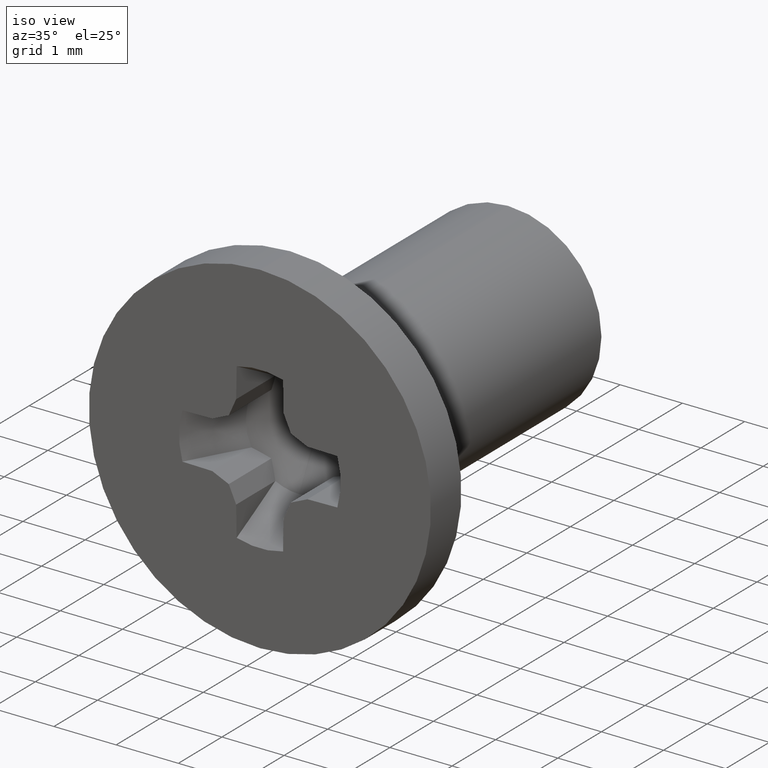
[diagram: clean part render]
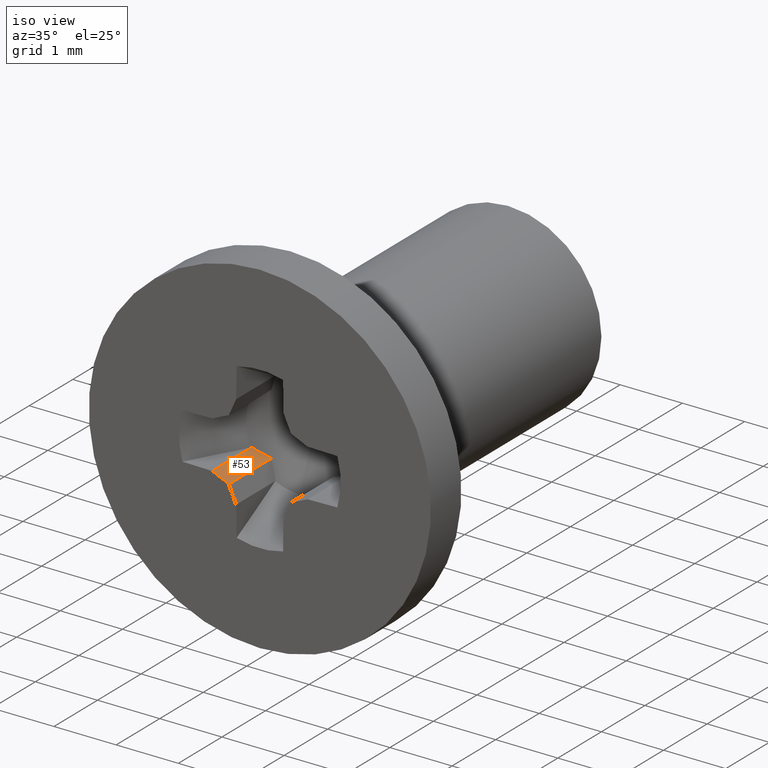
[diagram: same view with one face highlighted and labeled with its STEP entity id]
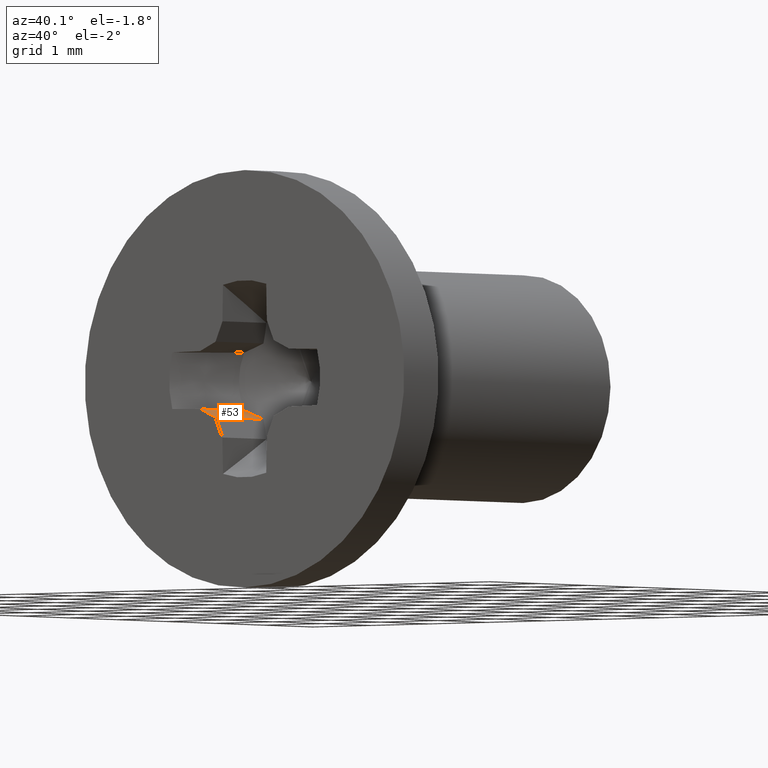
[diagram: same view with one face highlighted and labeled with its STEP entity id]
A machine part, iso view. The second image highlights one B-rep face of the part: STEP entity #53.
A second angle (auxiliary view) of the same face is appended — the face is thin or edge-on in the first view.
In plain terms, the highlighted planar face has unit normal (-0.4067, 0, -0.9135).
Its self-contained STEP definition (entity closure, byte-faithful):
#53=ADVANCED_FACE('',(#200),#199,.F.);
#199=PLANE('',#431);
#200=FACE_OUTER_BOUND('',#432,.T.);
#428=CARTESIAN_POINT('',(-4.73152039263E-01,-7.97857143851E-01,-5.11592935186E-01));
#429=DIRECTION('',(-4.06736643076E-01,0.00000000000E+00,-9.13545457643E-01));
#430=DIRECTION('',(-9.13545457643E-01,0.00000000000E+00,4.06736643076E-01));
#431=AXIS2_PLACEMENT_3D('',#428,#429,#430);
#432=EDGE_LOOP('',(#571,#572,#573,#574));
#571=ORIENTED_EDGE('',*,*,#698,.F.);
#572=ORIENTED_EDGE('',*,*,#700,.T.);
#573=ORIENTED_EDGE('',*,*,#664,.T.);
#574=ORIENTED_EDGE('',*,*,#701,.T.);
#664=EDGE_CURVE('',#732,#733,#734,.T.);
#698=EDGE_CURVE('',#957,#964,#965,.T.);
#700=EDGE_CURVE('',#957,#732,#977,.T.);
#701=EDGE_CURVE('',#733,#964,#983,.T.);
#732=VERTEX_POINT('',#1183);
#733=VERTEX_POINT('',#1184);
#734=LINE('',#1185,#1186);
#957=VERTEX_POINT('',#1323);
#964=VERTEX_POINT('',#1328);
#965=LINE('',#1329,#1330);
#977=(BOUNDED_CURVE() B_SPLINE_CURVE(3,(#1335,#1336,#1337,#1338),.UNSPECIFIED.,.F.,.F.) B_SPLINE_CURVE_WITH_KNOTS((4,4),(3.55343745428E-04,6.54906046522E-04),.UNSPECIFIED.) CURVE() GEOMETRIC_REPRESENTATION_ITEM() RATIONAL_B_SPLINE_CURVE((1.00000000000E+00,1.00000000000E+00,1.00000000000E+00,1.00000000000E+00)) REPRESENTATION_ITEM('') );
#983=LINE('',#1339,#1340);
#1183=CARTESIAN_POINT('',(-7.65735392644E-01,1.99518974701E-01,-3.81326433417E-01));
#1184=CARTESIAN_POINT('',(-7.65735392644E-01,-7.00000000000E-01,-3.81326433417E-01));
#1185=CARTESIAN_POINT('',(-7.65735392644E-01,1.99518974701E-01,-3.81326433417E-01));
#1186=VECTOR('',#1187,8.99518974701E-01);
#1187=DIRECTION('',(0.00000000000E+00,-1.00000000000E+00,0.00000000000E+00));
#1323=CARTESIAN_POINT('',(-4.99750525934E-01,2.78571438514E-01,-4.99750525934E-01));
#1328=CARTESIAN_POINT('',(-4.99750525934E-01,-7.00000000000E-01,-4.99750525934E-01));
#1329=CARTESIAN_POINT('',(-4.99750525934E-01,2.78571438514E-01,-4.99750525934E-01));
#1330=VECTOR('',#1331,9.78571438514E-01);
#1331=DIRECTION('',(0.00000000000E+00,-1.00000000000E+00,0.00000000000E+00));
#1335=CARTESIAN_POINT('',(-4.99750525934E-01,2.78571438514E-01,-4.99750525934E-01));
#1336=CARTESIAN_POINT('',(-5.89791049105E-01,2.59790755910E-01,-4.59661902178E-01));
#1337=CARTESIAN_POINT('',(-6.78789261757E-01,2.31726379474E-01,-4.20037344964E-01));
#1338=CARTESIAN_POINT('',(-7.65735392644E-01,1.99518974701E-01,-3.81326433417E-01));
#1339=CARTESIAN_POINT('',(-7.65735392644E-01,-7.00000000000E-01,-3.81326433417E-01));
#1340=VECTOR('',#1341,2.91156684634E-01);
#1341=DIRECTION('',(9.13545457643E-01,0.00000000000E+00,-4.06736643076E-01));